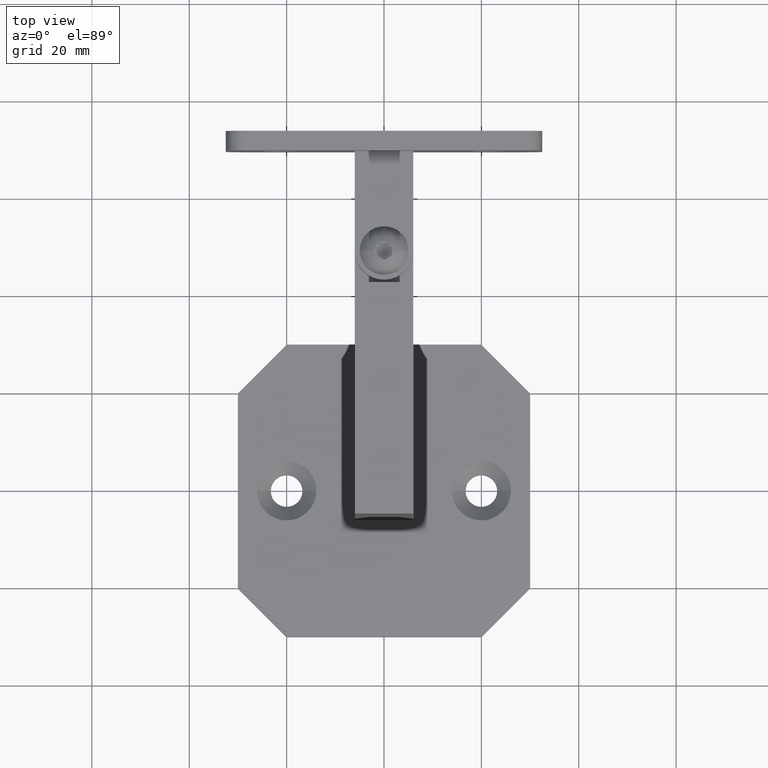
[diagram: clean part render]
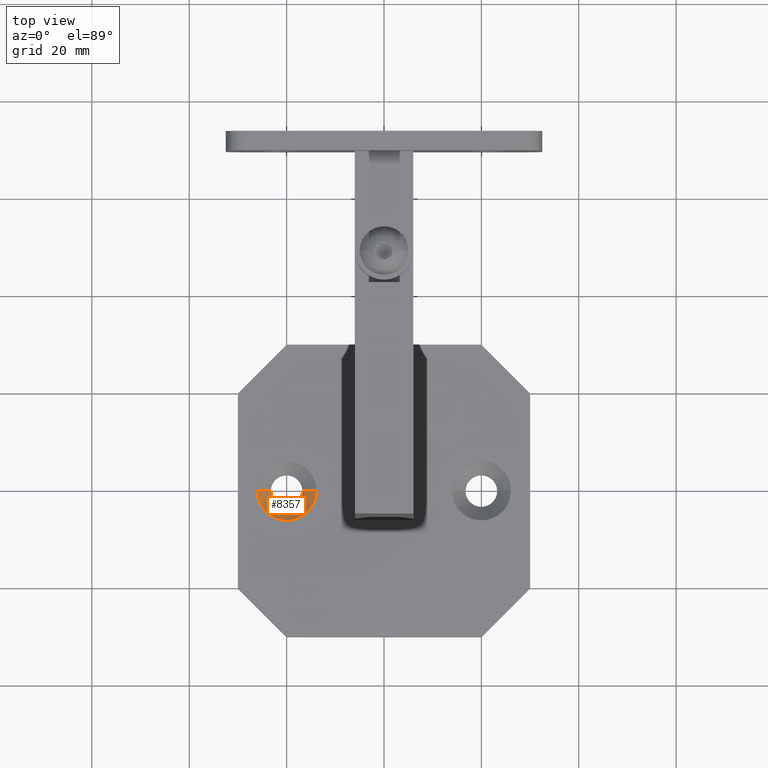
[diagram: same view with one face highlighted and labeled with its STEP entity id]
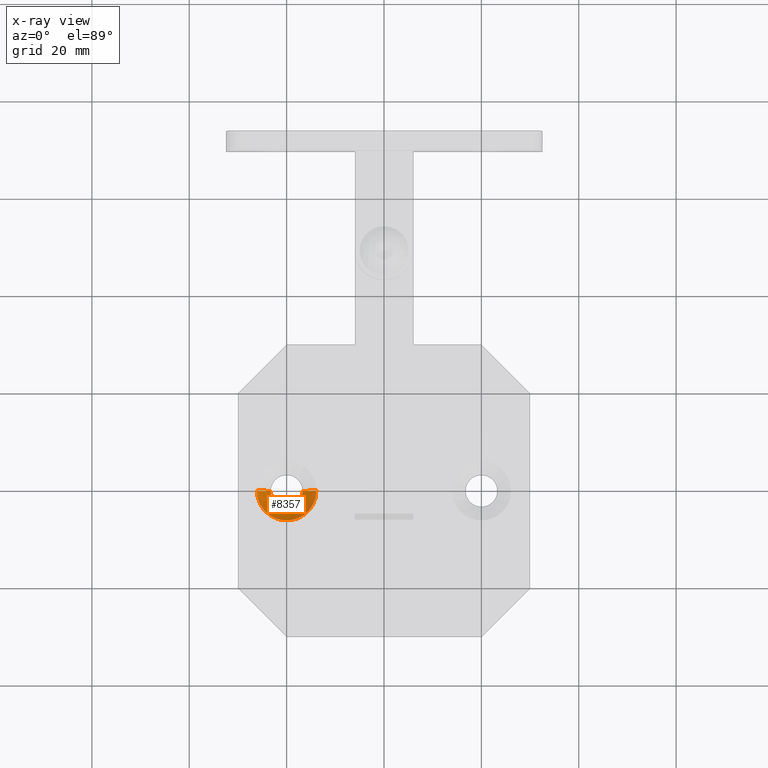
[diagram: x-ray of the same camera — body ghosted, the highlighted face saturated]
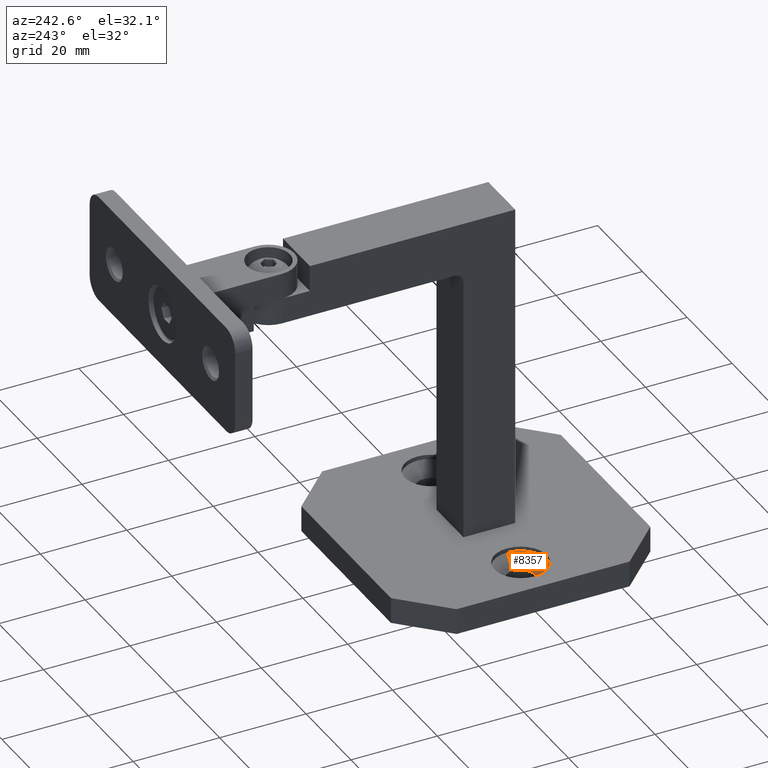
[diagram: same view with one face highlighted and labeled with its STEP entity id]
A machine part, top view. The second image highlights one B-rep face of the part: STEP entity #8357.
The next image is the same camera in x-ray: the body ghosted, the highlighted face saturated — about 0% of this face is hidden behind the body in this view.
A second angle (auxiliary view) of the same face is appended — the face is thin or edge-on in the first view.
In plain terms, the highlighted conical surface has half-angle 45 deg.
Its self-contained STEP definition (entity closure, byte-faithful):
#561 = AXIS2_PLACEMENT_3D ( 'NONE', #2581, #10468, #8468 ) ;
#1382 = ORIENTED_EDGE ( 'NONE', *, *, #19313, .T. ) ;
#1702 = CARTESIAN_POINT ( 'NONE',  ( -20.00000000000000000, 0.000000000000000000, 2.000000000000000888 ) ) ;
#1854 = VERTEX_POINT ( 'NONE', #8614 ) ;
#2581 = CARTESIAN_POINT ( 'NONE',  ( -20.00000000000000000, 0.000000000000000000, -0.8499999999999957589 ) ) ;
#3438 = ORIENTED_EDGE ( 'NONE', *, *, #13305, .F. ) ;
#4755 = DIRECTION ( 'NONE',  ( 1.000000000000000000, 0.000000000000000000, 0.000000000000000000 ) ) ;
#4813 = EDGE_CURVE ( 'NONE', #22666, #16297, #20961, .T. ) ;
#4840 = DIRECTION ( 'NONE',  ( -0.000000000000000000, -0.000000000000000000, 1.000000000000000000 ) ) ;
#7482 = EDGE_LOOP ( 'NONE', ( #11330, #20112, #1382, #3438 ) ) ;
#8357 = ADVANCED_FACE ( 'NONE', ( #16124 ), #20419, .F. ) ;
#8468 = DIRECTION ( 'NONE',  ( 1.000000000000000000, 0.000000000000000000, 0.000000000000000000 ) ) ;
#8494 = CARTESIAN_POINT ( 'NONE',  ( -13.90000000000000213, 0.000000000000000000, 2.000000000000000888 ) ) ;
#8614 = CARTESIAN_POINT ( 'NONE',  ( -16.75000000000000000, 0.000000000000000000, -0.8499999999999957589 ) ) ;
#9248 = CARTESIAN_POINT ( 'NONE',  ( -26.09999999999999787, 7.470345474798852320E-16, 2.000000000000000888 ) ) ;
#9403 = CARTESIAN_POINT ( 'NONE',  ( -13.90000000000000213, 0.000000000000000000, 2.000000000000000888 ) ) ;
#10468 = DIRECTION ( 'NONE',  ( -0.000000000000000000, -0.000000000000000000, 1.000000000000000000 ) ) ;
#10600 = DIRECTION ( 'NONE',  ( 1.000000000000000000, 0.000000000000000000, 0.000000000000000000 ) ) ;
#11330 = ORIENTED_EDGE ( 'NONE', *, *, #15248, .F. ) ;
#11755 = VERTEX_POINT ( 'NONE', #9403 ) ;
#12175 = CIRCLE ( 'NONE', #22719, 6.099999999999997868 ) ;
#12326 = CIRCLE ( 'NONE', #561, 3.249999999999999556 ) ;
#12397 = DIRECTION ( 'NONE',  ( 0.7071067811865477948, 0.000000000000000000, 0.7071067811865473507 ) ) ;
#13305 = EDGE_CURVE ( 'NONE', #1854, #11755, #16669, .T. ) ;
#14995 = AXIS2_PLACEMENT_3D ( 'NONE', #19578, #4840, #4755 ) ;
#15248 = EDGE_CURVE ( 'NONE', #22666, #1854, #12326, .T. ) ;
#16029 = CARTESIAN_POINT ( 'NONE',  ( -23.25000000000000000, 3.980102097228897245E-16, -0.8499999999999957589 ) ) ;
#16124 = FACE_OUTER_BOUND ( 'NONE', #7482, .T. ) ;
#16297 = VERTEX_POINT ( 'NONE', #9248 ) ;
#16669 = LINE ( 'NONE', #8494, #20925 ) ;
#17130 = CARTESIAN_POINT ( 'NONE',  ( -26.09999999999999787, 7.470345474798852320E-16, 2.000000000000000888 ) ) ;
#19313 = EDGE_CURVE ( 'NONE', #16297, #11755, #12175, .T. ) ;
#19578 = CARTESIAN_POINT ( 'NONE',  ( -20.00000000000000000, 0.000000000000000000, 2.000000000000000888 ) ) ;
#19911 = DIRECTION ( 'NONE',  ( -0.000000000000000000, -0.000000000000000000, 1.000000000000000000 ) ) ;
#20112 = ORIENTED_EDGE ( 'NONE', *, *, #4813, .T. ) ;
#20419 = CONICAL_SURFACE ( 'NONE', #14995, 6.099999999999997868, 0.7853981633974485010 ) ;
#20691 = VECTOR ( 'NONE', #22307, 999.9999999999998863 ) ;
#20925 = VECTOR ( 'NONE', #12397, 999.9999999999998863 ) ;
#20961 = LINE ( 'NONE', #17130, #20691 ) ;
#22307 = DIRECTION ( 'NONE',  ( -0.7071067811865477948, 8.659560562354936556E-17, 0.7071067811865473507 ) ) ;
#22666 = VERTEX_POINT ( 'NONE', #16029 ) ;
#22719 = AXIS2_PLACEMENT_3D ( 'NONE', #1702, #19911, #10600 ) ;